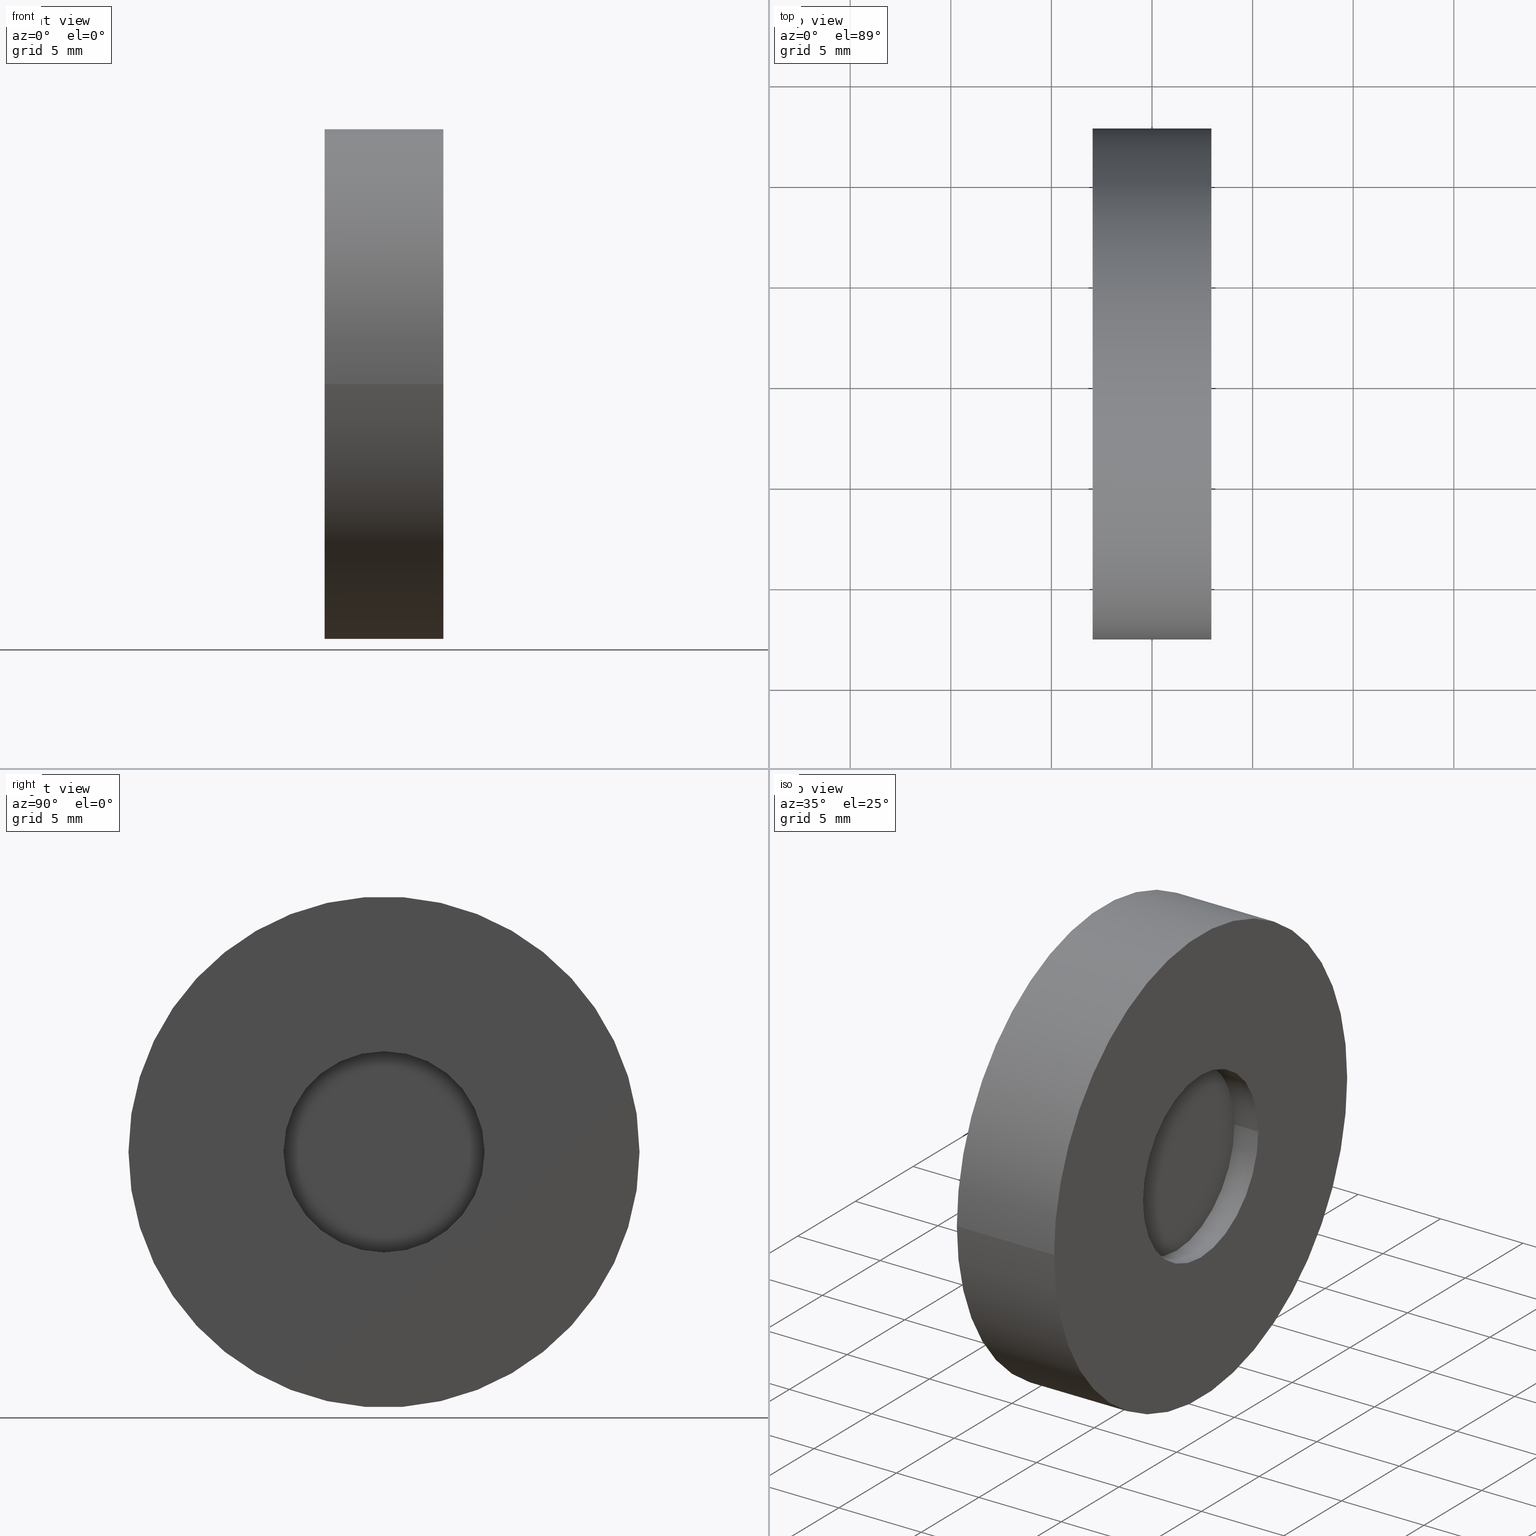
[diagram: canonical four-view strip — front | top / right | iso, engineering-drawing reading convention]
A machine part, canonical four-view strip (front | top / right | iso — engineering-drawing reading convention). The complete STEP part file that produces these views, byte-faithful:
ISO-10303-21;
HEADER;
FILE_DESCRIPTION (( 'STEP AP203' ),
    '1' );
FILE_NAME ('338000.STEP',
    '2021-07-16T05:55:18',
    ( '' ),
    ( '' ),
    'SwSTEP 2.0',
    'SolidWorks 2020',
    '' );
FILE_SCHEMA (( 'CONFIG_CONTROL_DESIGN' ));
ENDSEC;

DATA;
#1 = DIRECTION ( 'NONE',  ( 0.000000000000000000, 0.000000000000000000, 1.000000000000000000 ) ) ;
#2 = DIRECTION ( 'NONE',  ( 1.000000000000000000, 0.000000000000000000, 0.000000000000000000 ) ) ;
#3 = AXIS2_PLACEMENT_3D ( 'NONE', #430, #126, #500 ) ;
#4 = CARTESIAN_POINT ( 'NONE',  ( -0.7249999999999549027, -7.500000000000000000, 9.184850993605149917E-16 ) ) ;
#5 = LINE ( 'NONE', #113, #573 ) ;
#6 = LINE ( 'NONE', #8, #179 ) ;
#7 = CARTESIAN_POINT ( 'NONE',  ( 1.500000000000000000, -5.000000000000000000, 6.123233995736771213E-16 ) ) ;
#8 = CARTESIAN_POINT ( 'NONE',  ( 2.225000000000000089, -5.000000000000000000, 6.123233995736771213E-16 ) ) ;
#9 = EDGE_CURVE ( 'NONE', #274, #291, #112, .T. ) ;
#10 = AXIS2_PLACEMENT_3D ( 'NONE', #610, #294, #288 ) ;
#11 = DIRECTION ( 'NONE',  ( 1.000000000000000000, 0.000000000000000000, 0.000000000000000000 ) ) ;
#12 = APPROVAL_PERSON_ORGANIZATION ( #393, #602, #456 ) ;
#13 = VERTEX_POINT ( 'NONE', #329 ) ;
#14 = APPLICATION_PROTOCOL_DEFINITION ( 'international standard', 'config_control_design', 1994, #57 ) ;
#15 = PRODUCT ( '338000', '338000', '', ( #270 ) ) ;
#16 = ORIENTED_EDGE ( 'NONE', *, *, #56, .T. ) ;
#17 = COORDINATED_UNIVERSAL_TIME_OFFSET ( 8, 0, .AHEAD. ) ;
#18 = CC_DESIGN_APPROVAL ( #478, ( #592 ) ) ;
#19 = CYLINDRICAL_SURFACE ( 'NONE', #3, 12.69999999999999929 ) ;
#20 = CIRCLE ( 'NONE', #394, 7.500000000000000000 ) ;
#21 = EDGE_CURVE ( 'NONE', #326, #593, #375, .T. ) ;
#22 = VERTEX_POINT ( 'NONE', #481 ) ;
#23 = ORIENTED_EDGE ( 'NONE', *, *, #296, .T. ) ;
#24 = DIRECTION ( 'NONE',  ( -1.532339070446179666E-15, 1.000000000000000000, 0.000000000000000000 ) ) ;
#25 = AXIS2_PLACEMENT_3D ( 'NONE', #569, #43, #248 ) ;
#26 = CIRCLE ( 'NONE', #343, 5.000000000000000000 ) ;
#27 = ORIENTED_EDGE ( 'NONE', *, *, #364, .T. ) ;
#28 = VERTEX_POINT ( 'NONE', #595 ) ;
#29 = VERTEX_POINT ( 'NONE', #325 ) ;
#30 = ORIENTED_EDGE ( 'NONE', *, *, #347, .F. ) ;
#31 = DIRECTION ( 'NONE',  ( 1.000000000000000000, 0.000000000000000000, 0.000000000000000000 ) ) ;
#32 = ORIENTED_EDGE ( 'NONE', *, *, #347, .T. ) ;
#33 = DIRECTION ( 'NONE',  ( 1.000000000000000000, 0.000000000000000000, 0.000000000000000000 ) ) ;
#34 = DIRECTION ( 'NONE',  ( 0.000000000000000000, 0.000000000000000000, -1.000000000000000000 ) ) ;
#35 = DIRECTION ( 'NONE',  ( -1.480297366166879989E-15, 1.000000000000000000, 0.000000000000000000 ) ) ;
#36 = CARTESIAN_POINT ( 'NONE',  ( 1.110223024625159893E-15, -12.69999999999999929, 1.555301434917139813E-15 ) ) ;
#37 = ADVANCED_FACE ( 'NONE', ( #74 ), #19, .T. ) ;
#38 = DIRECTION ( 'NONE',  ( 1.000000000000000000, 0.000000000000000000, 0.000000000000000000 ) ) ;
#39 =( GEOMETRIC_REPRESENTATION_CONTEXT ( 3 ) GLOBAL_UNCERTAINTY_ASSIGNED_CONTEXT ( ( #429 ) ) GLOBAL_UNIT_ASSIGNED_CONTEXT ( ( #219, #272, #374 ) ) REPRESENTATION_CONTEXT ( 'NONE', 'WORKASPACE' ) );
#40 = EDGE_CURVE ( 'NONE', #479, #326, #233, .T. ) ;
#41 = CARTESIAN_POINT ( 'NONE',  ( 1.500000000000000000, -7.500000000000000000, 9.184850993605149917E-16 ) ) ;
#42 = CYLINDRICAL_SURFACE ( 'NONE', #549, 11.70000000000000107 ) ;
#43 = DIRECTION ( 'NONE',  ( 1.000000000000000000, 0.000000000000000000, 0.000000000000000000 ) ) ;
#44 = CYLINDRICAL_SURFACE ( 'NONE', #580, 7.500000000000000000 ) ;
#45 = ORIENTED_EDGE ( 'NONE', *, *, #433, .T. ) ;
#46 = CARTESIAN_POINT ( 'NONE',  ( 2.949999999999999734, -5.000000000000000000, 6.123233995736771213E-16 ) ) ;
#47 = FACE_OUTER_BOUND ( 'NONE', #648, .T. ) ;
#48 = FACE_OUTER_BOUND ( 'NONE', #284, .T. ) ;
#49 = ORIENTED_EDGE ( 'NONE', *, *, #447, .F. ) ;
#50 = CC_DESIGN_DATE_AND_TIME_ASSIGNMENT ( #635, #65, ( #592 ) ) ;
#51 = DIRECTION ( 'NONE',  ( 1.000000000000000000, 0.000000000000000000, 0.000000000000000000 ) ) ;
#52 = DIRECTION ( 'NONE',  ( 1.000000000000000000, 0.000000000000000000, 0.000000000000000000 ) ) ;
#53 = FACE_OUTER_BOUND ( 'NONE', #379, .T. ) ;
#54 = AXIS2_PLACEMENT_3D ( 'NONE', #355, #301, #577 ) ;
#55 = CLOSED_SHELL ( 'NONE', ( #616, #322, #574, #553, #276, #482, #241, #37, #231, #125 ) ) ;
#56 = EDGE_CURVE ( 'NONE', #218, #29, #540, .T. ) ;
#57 = APPLICATION_CONTEXT ( 'configuration controlled 3d designs of mechanical parts and assemblies' ) ;
#58 = CARTESIAN_POINT ( 'NONE',  ( -2.949999999999999734, 0.000000000000000000, 0.000000000000000000 ) ) ;
#59 = DIRECTION ( 'NONE',  ( 0.000000000000000000, 1.000000000000000000, 0.000000000000000000 ) ) ;
#60 = VECTOR ( 'NONE', #214, 1000.000000000000000 ) ;
#61 = CIRCLE ( 'NONE', #550, 12.69999999999999929 ) ;
#62 = DIRECTION ( 'NONE',  ( 1.000000000000000000, 0.000000000000000000, 0.000000000000000000 ) ) ;
#63 = AXIS2_PLACEMENT_3D ( 'NONE', #236, #33, #145 ) ;
#64 = EDGE_CURVE ( 'NONE', #122, #593, #535, .T. ) ;
#65 = DATE_TIME_ROLE ( 'creation_date' ) ;
#66 = ORIENTED_EDGE ( 'NONE', *, *, #498, .T. ) ;
#67 = APPROVAL_STATUS ( 'not_yet_approved' ) ;
#68 = ORIENTED_EDGE ( 'NONE', *, *, #289, .T. ) ;
#69 = DIRECTION ( 'NONE',  ( 1.000000000000000000, 0.000000000000000000, 0.000000000000000000 ) ) ;
#70 = PERSON_AND_ORGANIZATION_ROLE ( 'design_supplier' ) ;
#71 = ORIENTED_EDGE ( 'NONE', *, *, #644, .T. ) ;
#72 = ORIENTED_EDGE ( 'NONE', *, *, #594, .T. ) ;
#73 = SECURITY_CLASSIFICATION ( '', '', #335 ) ;
#74 = FACE_OUTER_BOUND ( 'NONE', #655, .T. ) ;
#75 = ADVANCED_FACE ( 'NONE', ( #320 ), #78, .T. ) ;
#76 = ORIENTED_EDGE ( 'NONE', *, *, #491, .F. ) ;
#77 = ORIENTED_EDGE ( 'NONE', *, *, #539, .F. ) ;
#78 = CYLINDRICAL_SURFACE ( 'NONE', #138, 7.500000000000000000 ) ;
#79 = AXIS2_PLACEMENT_3D ( 'NONE', #446, #563, #568 ) ;
#80 = VECTOR ( 'NONE', #244, 1000.000000000000000 ) ;
#81 = ORIENTED_EDGE ( 'NONE', *, *, #40, .T. ) ;
#82 = ORIENTED_EDGE ( 'NONE', *, *, #520, .F. ) ;
#83 = CARTESIAN_POINT ( 'NONE',  ( -2.200000000000000178, -11.70000000000000107, 1.432836755002401904E-15 ) ) ;
#84 = ORIENTED_EDGE ( 'NONE', *, *, #289, .F. ) ;
#85 = CALENDAR_DATE ( 2021, 16, 7 ) ;
#86 = CIRCLE ( 'NONE', #462, 5.000000000000000000 ) ;
#87 = CYLINDRICAL_SURFACE ( 'NONE', #150, 5.000000000000000000 ) ;
#88 = CIRCLE ( 'NONE', #260, 11.70000000000000107 ) ;
#89 = AXIS2_PLACEMENT_3D ( 'NONE', #143, #614, #102 ) ;
#90 = DIRECTION ( 'NONE',  ( 1.000000000000000000, 0.000000000000000000, 0.000000000000000000 ) ) ;
#91 = DIRECTION ( 'NONE',  ( 0.000000000000000000, 0.000000000000000000, -1.000000000000000000 ) ) ;
#92 = EDGE_CURVE ( 'NONE', #649, #435, #86, .T. ) ;
#93 = EDGE_CURVE ( 'NONE', #357, #405, #607, .T. ) ;
#94 = CARTESIAN_POINT ( 'NONE',  ( -2.949999999999999734, 11.70000000000000107, 0.000000000000000000 ) ) ;
#95 = CARTESIAN_POINT ( 'NONE',  ( 1.500000000000000000, 5.000000000000000000, 0.000000000000000000 ) ) ;
#96 = FACE_OUTER_BOUND ( 'NONE', #220, .T. ) ;
#97 = APPROVAL_DATE_TIME ( #444, #602 ) ;
#98 = VECTOR ( 'NONE', #242, 1000.000000000000000 ) ;
#99 = DIRECTION ( 'NONE',  ( -1.000000000000000000, 0.000000000000000000, 0.000000000000000000 ) ) ;
#100 = DIRECTION ( 'NONE',  ( 1.000000000000000000, 0.000000000000000000, 0.000000000000000000 ) ) ;
#101 = ORIENTED_EDGE ( 'NONE', *, *, #417, .T. ) ;
#102 = DIRECTION ( 'NONE',  ( 0.000000000000000000, 0.000000000000000000, -1.000000000000000000 ) ) ;
#103 = CARTESIAN_POINT ( 'NONE',  ( 2.949999999999999734, 5.000000000000000000, 0.000000000000000000 ) ) ;
#104 = CARTESIAN_POINT ( 'NONE',  ( -2.200000000000000178, -11.70000000000000107, 1.432836755002401904E-15 ) ) ;
#105 = EDGE_LOOP ( 'NONE', ( #328, #130 ) ) ;
#106 = CARTESIAN_POINT ( 'NONE',  ( -1.449999999999999956, -11.70000000000000107, 1.432836755002401904E-15 ) ) ;
#107 = DIRECTION ( 'NONE',  ( 1.000000000000000000, 0.000000000000000000, 0.000000000000000000 ) ) ;
#108 = CARTESIAN_POINT ( 'NONE',  ( 2.225000000000000089, 0.000000000000000000, 0.000000000000000000 ) ) ;
#109 = DIRECTION ( 'NONE',  ( 0.000000000000000000, 0.000000000000000000, -1.000000000000000000 ) ) ;
#110 = DIRECTION ( 'NONE',  ( 0.000000000000000000, 1.000000000000000000, 0.000000000000000000 ) ) ;
#111 = APPROVAL_PERSON_ORGANIZATION ( #221, #478, #121 ) ;
#112 = CIRCLE ( 'NONE', #193, 11.70000000000000107 ) ;
#113 = CARTESIAN_POINT ( 'NONE',  ( 2.225000000000000089, 5.000000000000000000, 0.000000000000000000 ) ) ;
#114 = DIRECTION ( 'NONE',  ( 1.000000000000000000, 3.064678140892360120E-15, 0.000000000000000000 ) ) ;
#115 = AXIS2_PLACEMENT_3D ( 'NONE', #160, #559, #464 ) ;
#116 = EDGE_CURVE ( 'NONE', #422, #617, #140, .T. ) ;
#117 = EDGE_CURVE ( 'NONE', #589, #225, #309, .T. ) ;
#118 = DATE_AND_TIME ( #477, #327 ) ;
#119 = EDGE_CURVE ( 'NONE', #227, #546, #20, .T. ) ;
#120 = ORIENTED_EDGE ( 'NONE', *, *, #259, .F. ) ;
#121 = APPROVAL_ROLE ( '' ) ;
#122 = VERTEX_POINT ( 'NONE', #346 ) ;
#123 = PERSON_AND_ORGANIZATION ( #541, #365 ) ;
#124 = ORIENTED_EDGE ( 'NONE', *, *, #531, .F. ) ;
#125 = ADVANCED_FACE ( 'NONE', ( #96 ), #295, .F. ) ;
#126 = DIRECTION ( 'NONE',  ( 1.000000000000000000, 0.000000000000000000, 0.000000000000000000 ) ) ;
#127 = ORIENTED_EDGE ( 'NONE', *, *, #423, .F. ) ;
#128 = ORIENTED_EDGE ( 'NONE', *, *, #447, .T. ) ;
#129 = DIRECTION ( 'NONE',  ( 1.000000000000000000, 0.000000000000000000, 0.000000000000000000 ) ) ;
#130 = ORIENTED_EDGE ( 'NONE', *, *, #93, .T. ) ;
#131 = EDGE_LOOP ( 'NONE', ( #32, #317 ) ) ;
#132 = CYLINDRICAL_SURFACE ( 'NONE', #493, 7.500000000000000000 ) ;
#133 = ORIENTED_EDGE ( 'NONE', *, *, #656, .F. ) ;
#134 = CARTESIAN_POINT ( 'NONE',  ( -1.449999999999999956, 0.000000000000000000, 0.000000000000000000 ) ) ;
#135 = ORIENTED_EDGE ( 'NONE', *, *, #21, .F. ) ;
#136 = AXIS2_PLACEMENT_3D ( 'NONE', #315, #167, #480 ) ;
#137 = CLOSED_SHELL ( 'NONE', ( #470, #166, #265, #400, #182, #348 ) ) ;
#138 = AXIS2_PLACEMENT_3D ( 'NONE', #224, #184, #24 ) ;
#139 = DIRECTION ( 'NONE',  ( -1.000000000000000000, -3.062684205862500216E-15, 0.000000000000000000 ) ) ;
#140 = LINE ( 'NONE', #36, #210 ) ;
#141 = ADVANCED_FACE ( 'NONE', ( #200 ), #239, .T. ) ;
#142 = CIRCLE ( 'NONE', #79, 11.70000000000000107 ) ;
#143 = CARTESIAN_POINT ( 'NONE',  ( 1.500000000000000000, 0.000000000000000000, 0.000000000000000000 ) ) ;
#144 = AXIS2_PLACEMENT_3D ( 'NONE', #515, #308, #621 ) ;
#145 = DIRECTION ( 'NONE',  ( 0.000000000000000000, 1.000000000000000000, 0.000000000000000000 ) ) ;
#146 = DIRECTION ( 'NONE',  ( 1.000000000000000000, 1.480297366166879989E-15, 0.000000000000000000 ) ) ;
#147 = COORDINATED_UNIVERSAL_TIME_OFFSET ( 8, 0, .AHEAD. ) ;
#148 = EDGE_CURVE ( 'NONE', #29, #492, #637, .T. ) ;
#149 = DIRECTION ( 'NONE',  ( 0.000000000000000000, 0.000000000000000000, -1.000000000000000000 ) ) ;
#150 = AXIS2_PLACEMENT_3D ( 'NONE', #598, #31, #332 ) ;
#151 = ORIENTED_EDGE ( 'NONE', *, *, #9, .T. ) ;
#152 = CARTESIAN_POINT ( 'NONE',  ( -2.949999999999999734, -11.70000000000000107, 1.432836755002401904E-15 ) ) ;
#153 = CARTESIAN_POINT ( 'NONE',  ( 1.500000000000000000, 7.500000000000000000, 0.000000000000000000 ) ) ;
#154 = CYLINDRICAL_SURFACE ( 'NONE', #174, 11.70000000000000107 ) ;
#155 = CC_DESIGN_DATE_AND_TIME_ASSIGNMENT ( #399, #189, ( #73 ) ) ;
#156 = ORIENTED_EDGE ( 'NONE', *, *, #667, .T. ) ;
#157 = DIRECTION ( 'NONE',  ( -1.000000000000000000, 0.000000000000000000, 0.000000000000000000 ) ) ;
#158 = CARTESIAN_POINT ( 'NONE',  ( 0.7500000000000229816, -7.500000000000000000, 9.184850993605149917E-16 ) ) ;
#159 = LINE ( 'NONE', #104, #266 ) ;
#160 = CARTESIAN_POINT ( 'NONE',  ( 2.949999999999999734, 5.000000000000000000, 0.000000000000000000 ) ) ;
#161 = CYLINDRICAL_SURFACE ( 'NONE', #666, 7.500000000000000000 ) ;
#162 = FACE_OUTER_BOUND ( 'NONE', #373, .T. ) ;
#163 = CARTESIAN_POINT ( 'NONE',  ( 4.547948229646449659E-14, -7.500000000000000000, 9.184850993605149917E-16 ) ) ;
#164 = CIRCLE ( 'NONE', #54, 12.69999999999999929 ) ;
#165 = CC_DESIGN_PERSON_AND_ORGANIZATION_ASSIGNMENT ( #425, #321, ( #15 ) ) ;
#166 = ADVANCED_FACE ( 'NONE', ( #190, #660 ), #615, .T. ) ;
#167 = DIRECTION ( 'NONE',  ( 0.000000000000000000, 0.000000000000000000, 1.000000000000000000 ) ) ;
#168 = ORIENTED_EDGE ( 'NONE', *, *, #421, .F. ) ;
#169 = ORIENTED_EDGE ( 'NONE', *, *, #64, .F. ) ;
#170 = AXIS2_PLACEMENT_3D ( 'NONE', #657, #404, #290 ) ;
#171 = PERSON_AND_ORGANIZATION ( #541, #365 ) ;
#172 = ADVANCED_FACE ( 'NONE', ( #185 ), #132, .T. ) ;
#173 = VECTOR ( 'NONE', #571, 1000.000000000000000 ) ;
#174 = AXIS2_PLACEMENT_3D ( 'NONE', #356, #209, #59 ) ;
#175 = CARTESIAN_POINT ( 'NONE',  ( -2.200000000000000178, -5.000000000000000000, 6.123233995736771213E-16 ) ) ;
#176 = EDGE_LOOP ( 'NONE', ( #49, #246, #484, #424 ) ) ;
#177 = ORIENTED_EDGE ( 'NONE', *, *, #40, .F. ) ;
#178 = DIRECTION ( 'NONE',  ( 1.000000000000000000, 0.000000000000000000, 0.000000000000000000 ) ) ;
#179 = VECTOR ( 'NONE', #630, 1000.000000000000000 ) ;
#180 = APPLICATION_CONTEXT ( 'configuration controlled 3d designs of mechanical parts and assemblies' ) ;
#181 = EDGE_LOOP ( 'NONE', ( #508, #299, #634, #331 ) ) ;
#182 = ADVANCED_FACE ( 'NONE', ( #187 ), #87, .F. ) ;
#183 = ORIENTED_EDGE ( 'NONE', *, *, #641, .F. ) ;
#184 = DIRECTION ( 'NONE',  ( 1.000000000000000000, 1.532339070446179863E-15, 0.000000000000000000 ) ) ;
#185 = FACE_OUTER_BOUND ( 'NONE', #476, .T. ) ;
#186 = ORIENTED_EDGE ( 'NONE', *, *, #213, .F. ) ;
#187 = FACE_OUTER_BOUND ( 'NONE', #601, .T. ) ;
#188 = ORIENTED_EDGE ( 'NONE', *, *, #605, .F. ) ;
#189 = DATE_TIME_ROLE ( 'classification_date' ) ;
#190 = FACE_BOUND ( 'NONE', #585, .T. ) ;
#191 = PRODUCT_DEFINITION_FORMATION_WITH_SPECIFIED_SOURCE ( '�κ�', '', #15, .NOT_KNOWN. ) ;
#192 = CARTESIAN_POINT ( 'NONE',  ( -1.449999999999979972, -4.440892098500559897E-15, 0.000000000000000000 ) ) ;
#193 = AXIS2_PLACEMENT_3D ( 'NONE', #449, #129, #440 ) ;
#194 = FACE_OUTER_BOUND ( 'NONE', #105, .T. ) ;
#195 = ADVANCED_FACE ( 'NONE', ( #600 ), #451, .F. ) ;
#196 = DIRECTION ( 'NONE',  ( 1.000000000000000000, 0.000000000000000000, 0.000000000000000000 ) ) ;
#197 = AXIS2_PLACEMENT_3D ( 'NONE', #58, #420, #629 ) ;
#198 = LINE ( 'NONE', #403, #80 ) ;
#199 = AXIS2_PLACEMENT_3D ( 'NONE', #292, #502, #34 ) ;
#200 = FACE_OUTER_BOUND ( 'NONE', #131, .T. ) ;
#201 = ORIENTED_EDGE ( 'NONE', *, *, #503, .T. ) ;
#202 = MANIFOLD_SOLID_BREP ( 'NONE', #137 ) ;
#203 = DIRECTION ( 'NONE',  ( 1.000000000000000000, 0.000000000000000000, 0.000000000000000000 ) ) ;
#204 = CARTESIAN_POINT ( 'NONE',  ( 0.000000000000000000, -2.294460917558659743E-15, 0.000000000000000000 ) ) ;
#205 = CARTESIAN_POINT ( 'NONE',  ( -1.449999999999999956, 0.000000000000000000, 0.000000000000000000 ) ) ;
#206 = ORIENTED_EDGE ( 'NONE', *, *, #117, .F. ) ;
#207 = CARTESIAN_POINT ( 'NONE',  ( -2.949999999999999734, -5.000000000000000000, 6.123233995736771213E-16 ) ) ;
#208 = CARTESIAN_POINT ( 'NONE',  ( 1.500000000000000000, 0.000000000000000000, 0.000000000000000000 ) ) ;
#209 = DIRECTION ( 'NONE',  ( 1.000000000000000000, 0.000000000000000000, 0.000000000000000000 ) ) ;
#210 = VECTOR ( 'NONE', #243, 1000.000000000000000 ) ;
#211 = CARTESIAN_POINT ( 'NONE',  ( 1.110223024625159893E-15, 12.69999999999999929, 0.000000000000000000 ) ) ;
#212 = CARTESIAN_POINT ( 'NONE',  ( 1.110223024625159893E-15, 0.000000000000000000, 0.000000000000000000 ) ) ;
#213 = EDGE_CURVE ( 'NONE', #495, #291, #543, .T. ) ;
#214 = DIRECTION ( 'NONE',  ( 1.000000000000000000, 3.062684205862500216E-15, 0.000000000000000000 ) ) ;
#215 = CARTESIAN_POINT ( 'NONE',  ( -2.949999999999999734, 0.000000000000000000, 0.000000000000000000 ) ) ;
#216 = ADVANCED_FACE ( 'NONE', ( #345 ), #604, .T. ) ;
#217 = DIRECTION ( 'NONE',  ( 0.000000000000000000, 0.000000000000000000, -1.000000000000000000 ) ) ;
#218 = VERTEX_POINT ( 'NONE', #545 ) ;
#219 =( LENGTH_UNIT ( ) NAMED_UNIT ( * ) SI_UNIT ( .MILLI., .METRE. ) );
#220 = EDGE_LOOP ( 'NONE', ( #206, #68, #489, #133 ) ) ;
#221 = PERSON_AND_ORGANIZATION ( #541, #365 ) ;
#222 = COORDINATED_UNIVERSAL_TIME_OFFSET ( 8, 0, .AHEAD. ) ;
#223 = VECTOR ( 'NONE', #620, 1000.000000000000000 ) ;
#224 = CARTESIAN_POINT ( 'NONE',  ( 0.7500000000000109912, -1.184237892933479931E-15, 0.000000000000000000 ) ) ;
#225 = VERTEX_POINT ( 'NONE', #95 ) ;
#226 = CIRCLE ( 'NONE', #431, 5.000000000000000000 ) ;
#227 = VERTEX_POINT ( 'NONE', #41 ) ;
#228 = CIRCLE ( 'NONE', #199, 7.500000000000000000 ) ;
#229 = DIRECTION ( 'NONE',  ( 1.000000000000000000, 0.000000000000000000, 0.000000000000000000 ) ) ;
#230 = ADVANCED_FACE ( 'NONE', ( #194 ), #494, .T. ) ;
#231 = ADVANCED_FACE ( 'NONE', ( #396 ), #339, .F. ) ;
#232 = EDGE_LOOP ( 'NONE', ( #269, #303 ) ) ;
#233 = LINE ( 'NONE', #175, #587 ) ;
#234 = AXIS2_PLACEMENT_3D ( 'NONE', #253, #298, #578 ) ;
#235 = ORIENTED_EDGE ( 'NONE', *, *, #56, .F. ) ;
#236 = CARTESIAN_POINT ( 'NONE',  ( -1.449999999999999956, 5.000000000000000000, 0.000000000000000000 ) ) ;
#237 = VERTEX_POINT ( 'NONE', #504 ) ;
#238 = CC_DESIGN_PERSON_AND_ORGANIZATION_ASSIGNMENT ( #561, #557, ( #73 ) ) ;
#239 = PLANE ( 'NONE',  #170 ) ;
#240 = FACE_OUTER_BOUND ( 'NONE', #267, .T. ) ;
#241 = ADVANCED_FACE ( 'NONE', ( #245 ), #663, .T. ) ;
#242 = DIRECTION ( 'NONE',  ( 1.000000000000000000, 0.000000000000000000, 0.000000000000000000 ) ) ;
#243 = DIRECTION ( 'NONE',  ( 1.000000000000000000, 0.000000000000000000, 0.000000000000000000 ) ) ;
#244 = DIRECTION ( 'NONE',  ( 1.000000000000000000, 1.533658456047630000E-15, 0.000000000000000000 ) ) ;
#245 = FACE_OUTER_BOUND ( 'NONE', #286, .T. ) ;
#246 = ORIENTED_EDGE ( 'NONE', *, *, #423, .T. ) ;
#247 = CARTESIAN_POINT ( 'NONE',  ( -2.200000000000000178, 0.000000000000000000, 0.000000000000000000 ) ) ;
#248 = DIRECTION ( 'NONE',  ( 0.000000000000000000, 0.000000000000000000, -1.000000000000000000 ) ) ;
#249 = DIRECTION ( 'NONE',  ( 0.000000000000000000, 0.000000000000000000, -1.000000000000000000 ) ) ;
#250 = ORIENTED_EDGE ( 'NONE', *, *, #9, .F. ) ;
#251 = CARTESIAN_POINT ( 'NONE',  ( -2.949999999999999734, -12.69999999999999929, 1.555301434917139813E-15 ) ) ;
#252 = CARTESIAN_POINT ( 'NONE',  ( 2.949999999999999734, 0.000000000000000000, 0.000000000000000000 ) ) ;
#253 = CARTESIAN_POINT ( 'NONE',  ( 0.000000000000000000, -2.294460917558659743E-15, 0.000000000000000000 ) ) ;
#254 = ORIENTED_EDGE ( 'NONE', *, *, #433, .F. ) ;
#255 = PLANE ( 'NONE',  #402 ) ;
#256 = CARTESIAN_POINT ( 'NONE',  ( -2.949999999999999734, 11.70000000000000107, 0.000000000000000000 ) ) ;
#257 = DIRECTION ( 'NONE',  ( 1.000000000000000000, 0.000000000000000000, 0.000000000000000000 ) ) ;
#258 = AXIS2_PLACEMENT_3D ( 'NONE', #652, #90, #548 ) ;
#259 = EDGE_CURVE ( 'NONE', #479, #122, #351, .T. ) ;
#260 = AXIS2_PLACEMENT_3D ( 'NONE', #513, #51, #109 ) ;
#261 = DIRECTION ( 'NONE',  ( 0.000000000000000000, 0.000000000000000000, -1.000000000000000000 ) ) ;
#262 = DIRECTION ( 'NONE',  ( 1.000000000000000000, 0.000000000000000000, 0.000000000000000000 ) ) ;
#263 = CIRCLE ( 'NONE', #370, 7.500000000000000000 ) ;
#264 = DIRECTION ( 'NONE',  ( 1.000000000000000000, 0.000000000000000000, 0.000000000000000000 ) ) ;
#265 = ADVANCED_FACE ( 'NONE', ( #511 ), #367, .F. ) ;
#266 = VECTOR ( 'NONE', #257, 1000.000000000000000 ) ;
#267 = EDGE_LOOP ( 'NONE', ( #254, #544 ) ) ;
#268 = COORDINATED_UNIVERSAL_TIME_OFFSET ( 8, 0, .AHEAD. ) ;
#269 = ORIENTED_EDGE ( 'NONE', *, *, #523, .F. ) ;
#270 = MECHANICAL_CONTEXT ( 'NONE', #57, 'mechanical' ) ;
#271 = DIRECTION ( 'NONE',  ( 0.000000000000000000, 0.000000000000000000, -1.000000000000000000 ) ) ;
#272 =( NAMED_UNIT ( * ) PLANE_ANGLE_UNIT ( ) SI_UNIT ( $, .RADIAN. ) );
#273 = LOCAL_TIME ( 13, 55, 18.00000000000000000, #222 ) ;
#274 = VERTEX_POINT ( 'NONE', #306 ) ;
#275 = CLOSED_SHELL ( 'NONE', ( #195, #75, #141, #172 ) ) ;
#276 = ADVANCED_FACE ( 'NONE', ( #48 ), #409, .F. ) ;
#277 = CARTESIAN_POINT ( 'NONE',  ( -0.7249999999999779954, -2.220446049250240111E-15, 0.000000000000000000 ) ) ;
#278 = EDGE_CURVE ( 'NONE', #443, #22, #439, .T. ) ;
#279 = VERTEX_POINT ( 'NONE', #469 ) ;
#280 = CIRCLE ( 'NONE', #25, 11.70000000000000107 ) ;
#281 = ORIENTED_EDGE ( 'NONE', *, *, #523, .T. ) ;
#282 = CIRCLE ( 'NONE', #612, 12.69999999999999929 ) ;
#283 = CARTESIAN_POINT ( 'NONE',  ( 2.250935075249569901E-14, 6.893903303388760389E-29, 0.000000000000000000 ) ) ;
#284 = EDGE_LOOP ( 'NONE', ( #330, #668, #16, #438 ) ) ;
#285 = CARTESIAN_POINT ( 'NONE',  ( -1.449999999999999956, 7.500000000000000000, 0.000000000000000000 ) ) ;
#286 = EDGE_LOOP ( 'NONE', ( #653, #71, #530, #77 ) ) ;
#287 = VECTOR ( 'NONE', #646, 1000.000000000000000 ) ;
#288 = DIRECTION ( 'NONE',  ( 0.000000000000000000, 1.000000000000000000, 0.000000000000000000 ) ) ;
#289 = EDGE_CURVE ( 'NONE', #589, #435, #6, .T. ) ;
#290 = DIRECTION ( 'NONE',  ( -1.480297366166879989E-15, 1.000000000000000000, 0.000000000000000000 ) ) ;
#291 = VERTEX_POINT ( 'NONE', #507 ) ;
#292 = CARTESIAN_POINT ( 'NONE',  ( -1.449999999999979972, -4.440892098500559897E-15, 0.000000000000000000 ) ) ;
#293 = AXIS2_PLACEMENT_3D ( 'NONE', #442, #388, #448 ) ;
#294 = DIRECTION ( 'NONE',  ( 1.000000000000000000, 0.000000000000000000, 0.000000000000000000 ) ) ;
#295 = CYLINDRICAL_SURFACE ( 'NONE', #258, 5.000000000000000000 ) ;
#296 = EDGE_CURVE ( 'NONE', #490, #492, #159, .T. ) ;
#297 = FACE_OUTER_BOUND ( 'NONE', #562, .T. ) ;
#298 = DIRECTION ( 'NONE',  ( 1.000000000000000000, 1.533658456047630000E-15, 0.000000000000000000 ) ) ;
#299 = ORIENTED_EDGE ( 'NONE', *, *, #278, .T. ) ;
#300 = CARTESIAN_POINT ( 'NONE',  ( -2.949999999999999734, 0.000000000000000000, 0.000000000000000000 ) ) ;
#301 = DIRECTION ( 'NONE',  ( 1.000000000000000000, 0.000000000000000000, 0.000000000000000000 ) ) ;
#302 = DIRECTION ( 'NONE',  ( 0.000000000000000000, 1.000000000000000000, 0.000000000000000000 ) ) ;
#303 = ORIENTED_EDGE ( 'NONE', *, *, #278, .F. ) ;
#304 = CARTESIAN_POINT ( 'NONE',  ( -2.949999999999999734, -11.70000000000000107, 1.432836755002401904E-15 ) ) ;
#305 = PLANE ( 'NONE',  #115 ) ;
#306 = CARTESIAN_POINT ( 'NONE',  ( -1.449999999999999956, 11.70000000000000107, 0.000000000000000000 ) ) ;
#307 = CARTESIAN_POINT ( 'NONE',  ( -0.7249999999999999778, 7.500000000000000000, 0.000000000000000000 ) ) ;
#308 = DIRECTION ( 'NONE',  ( 1.000000000000000000, 1.480297366166879989E-15, 0.000000000000000000 ) ) ;
#309 = CIRCLE ( 'NONE', #547, 5.000000000000000000 ) ;
#310 = ADVANCED_FACE ( 'NONE', ( #461 ), #44, .T. ) ;
#311 = AXIS2_PLACEMENT_3D ( 'NONE', #208, #62, #413 ) ;
#312 = DIRECTION ( 'NONE',  ( 1.000000000000000000, 0.000000000000000000, 0.000000000000000000 ) ) ;
#313 = DIRECTION ( 'NONE',  ( -3.064678140892359332E-15, 1.000000000000000000, 0.000000000000000000 ) ) ;
#314 = CIRCLE ( 'NONE', #144, 7.500000000000000000 ) ;
#315 = CARTESIAN_POINT ( 'NONE',  ( 0.000000000000000000, 0.000000000000000000, 0.000000000000000000 ) ) ;
#316 = AXIS2_PLACEMENT_3D ( 'NONE', #215, #2, #519 ) ;
#317 = ORIENTED_EDGE ( 'NONE', *, *, #119, .T. ) ;
#318 = CALENDAR_DATE ( 2021, 16, 7 ) ;
#319 = ORIENTED_EDGE ( 'NONE', *, *, #64, .T. ) ;
#320 = FACE_OUTER_BOUND ( 'NONE', #181, .T. ) ;
#321 = PERSON_AND_ORGANIZATION_ROLE ( 'design_owner' ) ;
#322 = ADVANCED_FACE ( 'NONE', ( #626 ), #572, .F. ) ;
#323 = EDGE_LOOP ( 'NONE', ( #410, #128, #168, #124 ) ) ;
#324 = EDGE_CURVE ( 'NONE', #593, #326, #26, .T. ) ;
#325 = CARTESIAN_POINT ( 'NONE',  ( -1.449999999999999956, 11.70000000000000107, 0.000000000000000000 ) ) ;
#326 = VERTEX_POINT ( 'NONE', #671 ) ;
#327 = LOCAL_TIME ( 13, 55, 18.00000000000000000, #268 ) ;
#328 = ORIENTED_EDGE ( 'NONE', *, *, #421, .T. ) ;
#329 = CARTESIAN_POINT ( 'NONE',  ( -2.949999999999999734, 12.69999999999999929, 0.000000000000000000 ) ) ;
#330 = ORIENTED_EDGE ( 'NONE', *, *, #296, .F. ) ;
#331 = ORIENTED_EDGE ( 'NONE', *, *, #119, .F. ) ;
#332 = DIRECTION ( 'NONE',  ( 0.000000000000000000, 1.000000000000000000, 0.000000000000000000 ) ) ;
#333 = ORIENTED_EDGE ( 'NONE', *, *, #117, .T. ) ;
#334 = ADVANCED_BREP_SHAPE_REPRESENTATION ( '338000', ( #202, #651, #643, #647, #136 ), #39 ) ;
#335 = SECURITY_CLASSIFICATION_LEVEL ( 'unclassified' ) ;
#336 = DIRECTION ( 'NONE',  ( 1.000000000000000000, 1.480297366166879989E-15, 0.000000000000000000 ) ) ;
#337 = ORIENTED_EDGE ( 'NONE', *, *, #324, .F. ) ;
#338 = VECTOR ( 'NONE', #264, 1000.000000000000000 ) ;
#339 = CYLINDRICAL_SURFACE ( 'NONE', #10, 11.70000000000000107 ) ;
#340 = ORIENTED_EDGE ( 'NONE', *, *, #667, .F. ) ;
#341 = CALENDAR_DATE ( 2021, 16, 7 ) ;
#342 = CIRCLE ( 'NONE', #466, 12.69999999999999929 ) ;
#343 = AXIS2_PLACEMENT_3D ( 'NONE', #205, #360, #249 ) ;
#344 = DIRECTION ( 'NONE',  ( 0.000000000000000000, 0.000000000000000000, -1.000000000000000000 ) ) ;
#345 = FACE_OUTER_BOUND ( 'NONE', #384, .T. ) ;
#346 = CARTESIAN_POINT ( 'NONE',  ( -2.949999999999999734, 5.000000000000000000, 0.000000000000000000 ) ) ;
#347 = EDGE_CURVE ( 'NONE', #546, #227, #314, .T. ) ;
#348 = ADVANCED_FACE ( 'NONE', ( #53 ), #154, .T. ) ;
#349 = DIRECTION ( 'NONE',  ( 1.000000000000000000, 3.062684205862500216E-15, 0.000000000000000000 ) ) ;
#350 = DIRECTION ( 'NONE',  ( -1.533658456047629803E-15, 1.000000000000000000, 0.000000000000000000 ) ) ;
#351 = CIRCLE ( 'NONE', #316, 5.000000000000000000 ) ;
#352 = DIRECTION ( 'NONE',  ( 1.000000000000000000, 0.000000000000000000, 0.000000000000000000 ) ) ;
#353 = ORIENTED_EDGE ( 'NONE', *, *, #664, .F. ) ;
#354 = DIRECTION ( 'NONE',  ( 0.000000000000000000, 0.000000000000000000, -1.000000000000000000 ) ) ;
#355 = CARTESIAN_POINT ( 'NONE',  ( -2.949999999999999734, 0.000000000000000000, 0.000000000000000000 ) ) ;
#356 = CARTESIAN_POINT ( 'NONE',  ( -2.200000000000000178, 0.000000000000000000, 0.000000000000000000 ) ) ;
#357 = VERTEX_POINT ( 'NONE', #163 ) ;
#358 = DIRECTION ( 'NONE',  ( 0.000000000000000000, 0.000000000000000000, 1.000000000000000000 ) ) ;
#359 = FACE_BOUND ( 'NONE', #441, .T. ) ;
#360 = DIRECTION ( 'NONE',  ( 1.000000000000000000, 0.000000000000000000, 0.000000000000000000 ) ) ;
#361 = CC_DESIGN_PERSON_AND_ORGANIZATION_ASSIGNMENT ( #533, #369, ( #592 ) ) ;
#362 = DIRECTION ( 'NONE',  ( 0.000000000000000000, 0.000000000000000000, -1.000000000000000000 ) ) ;
#363 = CARTESIAN_POINT ( 'NONE',  ( -0.7249999999999779954, -2.220446049250240111E-15, 0.000000000000000000 ) ) ;
#364 = EDGE_CURVE ( 'NONE', #237, #617, #61, .T. ) ;
#365 = ORGANIZATION ( 'δָ��', 'δָ��', '' ) ;
#366 = CARTESIAN_POINT ( 'NONE',  ( -2.949999999999999734, 0.000000000000000000, 0.000000000000000000 ) ) ;
#367 = CYLINDRICAL_SURFACE ( 'NONE', #381, 5.000000000000000000 ) ;
#368 = AXIS2_PLACEMENT_3D ( 'NONE', #406, #203, #354 ) ;
#369 = PERSON_AND_ORGANIZATION_ROLE ( 'creator' ) ;
#370 = AXIS2_PLACEMENT_3D ( 'NONE', #192, #658, #344 ) ;
#371 = EDGE_LOOP ( 'NONE', ( #156, #645 ) ) ;
#372 = APPLICATION_PROTOCOL_DEFINITION ( 'international standard', 'config_control_design', 1994, #180 ) ;
#373 = EDGE_LOOP ( 'NONE', ( #642, #389 ) ) ;
#374 =( NAMED_UNIT ( * ) SI_UNIT ( $, .STERADIAN. ) SOLID_ANGLE_UNIT ( ) );
#375 = CIRCLE ( 'NONE', #576, 5.000000000000000000 ) ;
#376 = DATE_AND_TIME ( #318, #273 ) ;
#377 = ADVANCED_FACE ( 'NONE', ( #628 ), #161, .T. ) ;
#378 = CARTESIAN_POINT ( 'NONE',  ( 1.500000000000000000, -7.401486830832590495E-17, 0.000000000000000000 ) ) ;
#379 = EDGE_LOOP ( 'NONE', ( #201, #606, #250, #183 ) ) ;
#380 = EDGE_CURVE ( 'NONE', #22, #546, #198, .T. ) ;
#381 = AXIS2_PLACEMENT_3D ( 'NONE', #419, #262, #565 ) ;
#382 = CARTESIAN_POINT ( 'NONE',  ( -1.449999999999999956, 0.000000000000000000, 0.000000000000000000 ) ) ;
#383 = ORIENTED_EDGE ( 'NONE', *, *, #503, .F. ) ;
#384 = EDGE_LOOP ( 'NONE', ( #488, #127 ) ) ;
#385 = APPROVAL ( #67, 'δָ��' ) ;
#386 = DIRECTION ( 'NONE',  ( 1.000000000000000000, 1.532339070446179863E-15, 0.000000000000000000 ) ) ;
#387 = ORIENTED_EDGE ( 'NONE', *, *, #656, .T. ) ;
#388 = DIRECTION ( 'NONE',  ( 1.000000000000000000, 3.062684205862500216E-15, 0.000000000000000000 ) ) ;
#389 = ORIENTED_EDGE ( 'NONE', *, *, #473, .F. ) ;
#390 = CARTESIAN_POINT ( 'NONE',  ( 0.000000000000000000, 0.000000000000000000, 0.000000000000000000 ) ) ;
#391 = CARTESIAN_POINT ( 'NONE',  ( 2.949999999999999734, 0.000000000000000000, 0.000000000000000000 ) ) ;
#392 = APPROVAL_PERSON_ORGANIZATION ( #426, #385, #636 ) ;
#393 = PERSON_AND_ORGANIZATION ( #541, #365 ) ;
#394 = AXIS2_PLACEMENT_3D ( 'NONE', #378, #146, #556 ) ;
#395 = FACE_OUTER_BOUND ( 'NONE', #599, .T. ) ;
#396 = FACE_OUTER_BOUND ( 'NONE', #672, .T. ) ;
#397 = EDGE_CURVE ( 'NONE', #28, #279, #263, .T. ) ;
#398 = DIRECTION ( 'NONE',  ( 1.000000000000000000, 0.000000000000000000, 0.000000000000000000 ) ) ;
#399 = DATE_AND_TIME ( #85, #474 ) ;
#400 = ADVANCED_FACE ( 'NONE', ( #505, #395 ), #255, .T. ) ;
#401 = VECTOR ( 'NONE', #349, 1000.000000000000000 ) ;
#402 = AXIS2_PLACEMENT_3D ( 'NONE', #94, #99, #609 ) ;
#403 = CARTESIAN_POINT ( 'NONE',  ( 0.7500000000000000000, 7.500000000000000000, 0.000000000000000000 ) ) ;
#404 = DIRECTION ( 'NONE',  ( 1.000000000000000000, 1.480297366166879989E-15, 0.000000000000000000 ) ) ;
#405 = VERTEX_POINT ( 'NONE', #558 ) ;
#406 = CARTESIAN_POINT ( 'NONE',  ( -1.449999999999999956, 0.000000000000000000, 0.000000000000000000 ) ) ;
#407 = LINE ( 'NONE', #670, #223 ) ;
#408 = AXIS2_PLACEMENT_3D ( 'NONE', #134, #445, #499 ) ;
#409 = CYLINDRICAL_SURFACE ( 'NONE', #472, 11.70000000000000107 ) ;
#410 = ORIENTED_EDGE ( 'NONE', *, *, #397, .T. ) ;
#411 = LOCAL_TIME ( 13, 55, 18.00000000000000000, #608 ) ;
#412 = FACE_BOUND ( 'NONE', #633, .T. ) ;
#413 = DIRECTION ( 'NONE',  ( 0.000000000000000000, 1.000000000000000000, 0.000000000000000000 ) ) ;
#414 = CARTESIAN_POINT ( 'NONE',  ( -2.200000000000000178, 0.000000000000000000, 0.000000000000000000 ) ) ;
#415 = DIRECTION ( 'NONE',  ( 0.000000000000000000, 0.000000000000000000, -1.000000000000000000 ) ) ;
#416 = DIRECTION ( 'NONE',  ( 1.000000000000000000, 0.000000000000000000, 0.000000000000000000 ) ) ;
#417 = EDGE_CURVE ( 'NONE', #225, #589, #434, .T. ) ;
#418 = CARTESIAN_POINT ( 'NONE',  ( 2.949999999999999734, -12.69999999999999929, 1.555301434917139813E-15 ) ) ;
#419 = CARTESIAN_POINT ( 'NONE',  ( -2.200000000000000178, 0.000000000000000000, 0.000000000000000000 ) ) ;
#420 = DIRECTION ( 'NONE',  ( 1.000000000000000000, 0.000000000000000000, 0.000000000000000000 ) ) ;
#421 = EDGE_CURVE ( 'NONE', #405, #357, #640, .T. ) ;
#422 = VERTEX_POINT ( 'NONE', #251 ) ;
#423 = EDGE_CURVE ( 'NONE', #279, #28, #228, .T. ) ;
#424 = ORIENTED_EDGE ( 'NONE', *, *, #93, .F. ) ;
#425 = PERSON_AND_ORGANIZATION ( #541, #365 ) ;
#426 = PERSON_AND_ORGANIZATION ( #541, #365 ) ;
#427 = AXIS2_PLACEMENT_3D ( 'NONE', #510, #471, #362 ) ;
#428 = VECTOR ( 'NONE', #178, 1000.000000000000000 ) ;
#429 = UNCERTAINTY_MEASURE_WITH_UNIT (LENGTH_MEASURE( 1.000000000000000082E-05 ), #219, 'distance_accuracy_value', 'NONE');
#430 = CARTESIAN_POINT ( 'NONE',  ( 1.110223024625159893E-15, 0.000000000000000000, 0.000000000000000000 ) ) ;
#431 = AXIS2_PLACEMENT_3D ( 'NONE', #252, #11, #415 ) ;
#432 = EDGE_LOOP ( 'NONE', ( #177, #340, #319, #437 ) ) ;
#433 = EDGE_CURVE ( 'NONE', #13, #422, #282, .T. ) ;
#434 = CIRCLE ( 'NONE', #89, 5.000000000000000000 ) ;
#435 = VERTEX_POINT ( 'NONE', #46 ) ;
#436 = DIRECTION ( 'NONE',  ( 0.000000000000000000, 0.000000000000000000, -1.000000000000000000 ) ) ;
#437 = ORIENTED_EDGE ( 'NONE', *, *, #324, .T. ) ;
#438 = ORIENTED_EDGE ( 'NONE', *, *, #148, .T. ) ;
#439 = CIRCLE ( 'NONE', #234, 7.500000000000000000 ) ;
#440 = DIRECTION ( 'NONE',  ( 0.000000000000000000, 0.000000000000000000, -1.000000000000000000 ) ) ;
#441 = EDGE_LOOP ( 'NONE', ( #485, #82 ) ) ;
#442 = CARTESIAN_POINT ( 'NONE',  ( 0.000000000000000000, 0.000000000000000000, 0.000000000000000000 ) ) ;
#443 = VERTEX_POINT ( 'NONE', #662 ) ;
#444 = DATE_AND_TIME ( #341, #411 ) ;
#445 = DIRECTION ( 'NONE',  ( 1.000000000000000000, 0.000000000000000000, 0.000000000000000000 ) ) ;
#446 = CARTESIAN_POINT ( 'NONE',  ( -1.449999999999999956, 0.000000000000000000, 0.000000000000000000 ) ) ;
#447 = EDGE_CURVE ( 'NONE', #279, #357, #453, .T. ) ;
#448 = DIRECTION ( 'NONE',  ( -3.062684205862500216E-15, 1.000000000000000000, 0.000000000000000000 ) ) ;
#449 = CARTESIAN_POINT ( 'NONE',  ( -1.449999999999999956, 0.000000000000000000, 0.000000000000000000 ) ) ;
#450 = DIRECTION ( 'NONE',  ( 1.000000000000000000, 3.062684205862500216E-15, 0.000000000000000000 ) ) ;
#451 = PLANE ( 'NONE',  #501 ) ;
#452 = EDGE_LOOP ( 'NONE', ( #27, #582 ) ) ;
#453 = LINE ( 'NONE', #4, #401 ) ;
#454 = LINE ( 'NONE', #307, #60 ) ;
#455 = DIRECTION ( 'NONE',  ( 1.000000000000000000, 0.000000000000000000, 0.000000000000000000 ) ) ;
#456 = APPROVAL_ROLE ( '' ) ;
#457 = ORIENTED_EDGE ( 'NONE', *, *, #21, .T. ) ;
#458 = CC_DESIGN_PERSON_AND_ORGANIZATION_ASSIGNMENT ( #123, #70, ( #191 ) ) ;
#459 = DIRECTION ( 'NONE',  ( 0.000000000000000000, 1.000000000000000000, 0.000000000000000000 ) ) ;
#460 = PLANE ( 'NONE',  #521 ) ;
#461 = FACE_OUTER_BOUND ( 'NONE', #323, .T. ) ;
#462 = AXIS2_PLACEMENT_3D ( 'NONE', #391, #229, #436 ) ;
#463 = DIRECTION ( 'NONE',  ( -3.064678140892359332E-15, 1.000000000000000000, 0.000000000000000000 ) ) ;
#464 = DIRECTION ( 'NONE',  ( 0.000000000000000000, 1.000000000000000000, 0.000000000000000000 ) ) ;
#465 = CARTESIAN_POINT ( 'NONE',  ( 2.949999999999999734, 0.000000000000000000, 0.000000000000000000 ) ) ;
#466 = AXIS2_PLACEMENT_3D ( 'NONE', #514, #107, #217 ) ;
#467 = AXIS2_PLACEMENT_3D ( 'NONE', #108, #352, #110 ) ;
#468 = DIRECTION ( 'NONE',  ( -1.000000000000000000, 0.000000000000000000, 0.000000000000000000 ) ) ;
#469 = CARTESIAN_POINT ( 'NONE',  ( -1.449999999999955991, -7.500000000000000000, 9.184850993605149917E-16 ) ) ;
#470 = ADVANCED_FACE ( 'NONE', ( #297 ), #42, .T. ) ;
#471 = DIRECTION ( 'NONE',  ( 1.000000000000000000, 0.000000000000000000, 0.000000000000000000 ) ) ;
#472 = AXIS2_PLACEMENT_3D ( 'NONE', #414, #100, #560 ) ;
#473 = EDGE_CURVE ( 'NONE', #492, #29, #487, .T. ) ;
#474 = LOCAL_TIME ( 13, 55, 18.00000000000000000, #147 ) ;
#475 = ORIENTED_EDGE ( 'NONE', *, *, #364, .F. ) ;
#476 = EDGE_LOOP ( 'NONE', ( #281, #72, #30, #597 ) ) ;
#477 = CALENDAR_DATE ( 2021, 16, 7 ) ;
#478 = APPROVAL ( #583, 'δָ��' ) ;
#479 = VERTEX_POINT ( 'NONE', #207 ) ;
#480 = DIRECTION ( 'NONE',  ( 1.000000000000000000, 0.000000000000000000, 0.000000000000000000 ) ) ;
#481 = CARTESIAN_POINT ( 'NONE',  ( -1.150243842035721938E-14, 7.500000000000000000, 0.000000000000000000 ) ) ;
#482 = ADVANCED_FACE ( 'NONE', ( #412, #240 ), #619, .T. ) ;
#483 = CC_DESIGN_APPROVAL ( #385, ( #191 ) ) ;
#484 = ORIENTED_EDGE ( 'NONE', *, *, #531, .T. ) ;
#485 = ORIENTED_EDGE ( 'NONE', *, *, #92, .F. ) ;
#486 = ORIENTED_EDGE ( 'NONE', *, *, #116, .T. ) ;
#487 = CIRCLE ( 'NONE', #368, 11.70000000000000107 ) ;
#488 = ORIENTED_EDGE ( 'NONE', *, *, #397, .F. ) ;
#489 = ORIENTED_EDGE ( 'NONE', *, *, #520, .T. ) ;
#490 = VERTEX_POINT ( 'NONE', #152 ) ;
#491 = EDGE_CURVE ( 'NONE', #291, #274, #142, .T. ) ;
#492 = VERTEX_POINT ( 'NONE', #106 ) ;
#493 = AXIS2_PLACEMENT_3D ( 'NONE', #496, #386, #654 ) ;
#494 = PLANE ( 'NONE',  #293 ) ;
#495 = VERTEX_POINT ( 'NONE', #304 ) ;
#496 = CARTESIAN_POINT ( 'NONE',  ( 0.7500000000000109912, -1.184237892933479931E-15, 0.000000000000000000 ) ) ;
#497 = APPROVAL_STATUS ( 'not_yet_approved' ) ;
#498 = EDGE_CURVE ( 'NONE', #490, #218, #88, .T. ) ;
#499 = DIRECTION ( 'NONE',  ( 0.000000000000000000, 0.000000000000000000, -1.000000000000000000 ) ) ;
#500 = DIRECTION ( 'NONE',  ( 0.000000000000000000, 1.000000000000000000, 0.000000000000000000 ) ) ;
#501 = AXIS2_PLACEMENT_3D ( 'NONE', #390, #336, #35 ) ;
#502 = DIRECTION ( 'NONE',  ( 1.000000000000000000, 3.062684205862500216E-15, 0.000000000000000000 ) ) ;
#503 = EDGE_CURVE ( 'NONE', #542, #495, #639, .T. ) ;
#504 = CARTESIAN_POINT ( 'NONE',  ( 2.949999999999999734, 12.69999999999999929, 0.000000000000000000 ) ) ;
#505 = FACE_BOUND ( 'NONE', #371, .T. ) ;
#506 = PLANE ( 'NONE',  #311 ) ;
#507 = CARTESIAN_POINT ( 'NONE',  ( -1.449999999999999956, -11.70000000000000107, 1.432836755002401904E-15 ) ) ;
#508 = ORIENTED_EDGE ( 'NONE', *, *, #594, .F. ) ;
#509 = DIRECTION ( 'NONE',  ( 1.000000000000000000, 3.064678140892360120E-15, 0.000000000000000000 ) ) ;
#510 = CARTESIAN_POINT ( 'NONE',  ( -2.949999999999999734, 0.000000000000000000, 0.000000000000000000 ) ) ;
#511 = FACE_OUTER_BOUND ( 'NONE', #432, .T. ) ;
#512 = ORIENTED_EDGE ( 'NONE', *, *, #641, .T. ) ;
#513 = CARTESIAN_POINT ( 'NONE',  ( -2.949999999999999734, 0.000000000000000000, 0.000000000000000000 ) ) ;
#514 = CARTESIAN_POINT ( 'NONE',  ( 2.949999999999999734, 0.000000000000000000, 0.000000000000000000 ) ) ;
#515 = CARTESIAN_POINT ( 'NONE',  ( 1.500000000000000000, -7.401486830832590495E-17, 0.000000000000000000 ) ) ;
#516 = AXIS2_PLACEMENT_3D ( 'NONE', #366, #52, #261 ) ;
#517 = AXIS2_PLACEMENT_3D ( 'NONE', #283, #638, #91 ) ;
#518 = CARTESIAN_POINT ( 'NONE',  ( -1.449999999999999956, 5.000000000000000000, 0.000000000000000000 ) ) ;
#519 = DIRECTION ( 'NONE',  ( 0.000000000000000000, 0.000000000000000000, -1.000000000000000000 ) ) ;
#520 = EDGE_CURVE ( 'NONE', #435, #649, #226, .T. ) ;
#521 = AXIS2_PLACEMENT_3D ( 'NONE', #564, #468, #1 ) ;
#522 = AXIS2_PLACEMENT_3D ( 'NONE', #554, #450, #673 ) ;
#523 = EDGE_CURVE ( 'NONE', #22, #443, #579, .T. ) ;
#524 = LINE ( 'NONE', #211, #338 ) ;
#525 = APPROVAL_DATE_TIME ( #376, #478 ) ;
#526 = CC_DESIGN_APPROVAL ( #602, ( #73 ) ) ;
#527 = ORIENTED_EDGE ( 'NONE', *, *, #605, .T. ) ;
#528 = CALENDAR_DATE ( 2021, 16, 7 ) ;
#529 = PRODUCT_RELATED_PRODUCT_CATEGORY ( 'detail', '', ( #15 ) ) ;
#530 = ORIENTED_EDGE ( 'NONE', *, *, #664, .T. ) ;
#531 = EDGE_CURVE ( 'NONE', #28, #405, #454, .T. ) ;
#532 = ORIENTED_EDGE ( 'NONE', *, *, #491, .T. ) ;
#533 = PERSON_AND_ORGANIZATION ( #541, #365 ) ;
#534 = ORIENTED_EDGE ( 'NONE', *, *, #473, .T. ) ;
#535 = LINE ( 'NONE', #650, #428 ) ;
#536 = CIRCLE ( 'NONE', #427, 5.000000000000000000 ) ;
#537 = EDGE_LOOP ( 'NONE', ( #84, #567, #387, #590 ) ) ;
#538 = ORIENTED_EDGE ( 'NONE', *, *, #631, .T. ) ;
#539 = EDGE_CURVE ( 'NONE', #617, #237, #342, .T. ) ;
#540 = LINE ( 'NONE', #551, #287 ) ;
#541 = PERSON ( 'δָ��', 'δָ��', 'δָ��', ('δָ��'), ('δָ��'), ('δָ��') ) ;
#542 = VERTEX_POINT ( 'NONE', #256 ) ;
#543 = LINE ( 'NONE', #83, #98 ) ;
#544 = ORIENTED_EDGE ( 'NONE', *, *, #644, .F. ) ;
#545 = CARTESIAN_POINT ( 'NONE',  ( -2.949999999999999734, 11.70000000000000107, 0.000000000000000000 ) ) ;
#546 = VERTEX_POINT ( 'NONE', #153 ) ;
#547 = AXIS2_PLACEMENT_3D ( 'NONE', #661, #196, #613 ) ;
#548 = DIRECTION ( 'NONE',  ( 0.000000000000000000, 1.000000000000000000, 0.000000000000000000 ) ) ;
#549 = AXIS2_PLACEMENT_3D ( 'NONE', #247, #669, #459 ) ;
#550 = AXIS2_PLACEMENT_3D ( 'NONE', #465, #416, #570 ) ;
#551 = CARTESIAN_POINT ( 'NONE',  ( -2.200000000000000178, 11.70000000000000107, 0.000000000000000000 ) ) ;
#552 = SHAPE_DEFINITION_REPRESENTATION ( #581, #334 ) ;
#553 = ADVANCED_FACE ( 'NONE', ( #162 ), #460, .T. ) ;
#554 = CARTESIAN_POINT ( 'NONE',  ( 2.250935075249569901E-14, 6.893903303388760389E-29, 0.000000000000000000 ) ) ;
#555 = DIRECTION ( 'NONE',  ( -3.062684205862500216E-15, 1.000000000000000000, 0.000000000000000000 ) ) ;
#556 = DIRECTION ( 'NONE',  ( 0.000000000000000000, 0.000000000000000000, -1.000000000000000000 ) ) ;
#557 = PERSON_AND_ORGANIZATION_ROLE ( 'classification_officer' ) ;
#558 = CARTESIAN_POINT ( 'NONE',  ( -4.607807914730520190E-16, 7.500000000000000000, 0.000000000000000000 ) ) ;
#559 = DIRECTION ( 'NONE',  ( 1.000000000000000000, 0.000000000000000000, 0.000000000000000000 ) ) ;
#560 = DIRECTION ( 'NONE',  ( 0.000000000000000000, 1.000000000000000000, 0.000000000000000000 ) ) ;
#561 = PERSON_AND_ORGANIZATION ( #541, #365 ) ;
#562 = EDGE_LOOP ( 'NONE', ( #186, #527, #512, #76 ) ) ;
#563 = DIRECTION ( 'NONE',  ( 1.000000000000000000, 0.000000000000000000, 0.000000000000000000 ) ) ;
#564 = CARTESIAN_POINT ( 'NONE',  ( -1.449999999999999956, 11.70000000000000107, 0.000000000000000000 ) ) ;
#565 = DIRECTION ( 'NONE',  ( 0.000000000000000000, 1.000000000000000000, 0.000000000000000000 ) ) ;
#566 = DESIGN_CONTEXT ( 'detailed design', #180, 'design' ) ;
#567 = ORIENTED_EDGE ( 'NONE', *, *, #417, .F. ) ;
#568 = DIRECTION ( 'NONE',  ( 0.000000000000000000, 0.000000000000000000, -1.000000000000000000 ) ) ;
#569 = CARTESIAN_POINT ( 'NONE',  ( -2.949999999999999734, 0.000000000000000000, 0.000000000000000000 ) ) ;
#570 = DIRECTION ( 'NONE',  ( 0.000000000000000000, 0.000000000000000000, -1.000000000000000000 ) ) ;
#571 = DIRECTION ( 'NONE',  ( 1.000000000000000000, 1.533658456047630000E-15, 0.000000000000000000 ) ) ;
#572 = CYLINDRICAL_SURFACE ( 'NONE', #467, 5.000000000000000000 ) ;
#573 = VECTOR ( 'NONE', #312, 1000.000000000000000 ) ;
#574 = ADVANCED_FACE ( 'NONE', ( #47 ), #506, .T. ) ;
#575 = CLOSED_SHELL ( 'NONE', ( #216, #377, #230, #310 ) ) ;
#576 = AXIS2_PLACEMENT_3D ( 'NONE', #382, #69, #271 ) ;
#577 = DIRECTION ( 'NONE',  ( 0.000000000000000000, 0.000000000000000000, -1.000000000000000000 ) ) ;
#578 = DIRECTION ( 'NONE',  ( -1.533658456047629803E-15, 1.000000000000000000, 0.000000000000000000 ) ) ;
#579 = CIRCLE ( 'NONE', #611, 7.500000000000000000 ) ;
#580 = AXIS2_PLACEMENT_3D ( 'NONE', #363, #114, #313 ) ;
#581 = PRODUCT_DEFINITION_SHAPE ( 'NONE', 'NONE',  #592 ) ;
#582 = ORIENTED_EDGE ( 'NONE', *, *, #539, .T. ) ;
#583 = APPROVAL_STATUS ( 'not_yet_approved' ) ;
#584 = CC_DESIGN_PERSON_AND_ORGANIZATION_ASSIGNMENT ( #171, #588, ( #191 ) ) ;
#585 = EDGE_LOOP ( 'NONE', ( #337, #135 ) ) ;
#586 = APPROVAL_DATE_TIME ( #118, #385 ) ;
#587 = VECTOR ( 'NONE', #398, 1000.000000000000000 ) ;
#588 = PERSON_AND_ORGANIZATION_ROLE ( 'creator' ) ;
#589 = VERTEX_POINT ( 'NONE', #7 ) ;
#590 = ORIENTED_EDGE ( 'NONE', *, *, #92, .T. ) ;
#591 = AXIS2_PLACEMENT_3D ( 'NONE', #285, #139, #555 ) ;
#592 = PRODUCT_DEFINITION ( 'δ֪', '', #191, #566 ) ;
#593 = VERTEX_POINT ( 'NONE', #518 ) ;
#594 = EDGE_CURVE ( 'NONE', #443, #227, #625, .T. ) ;
#595 = CARTESIAN_POINT ( 'NONE',  ( -1.449999999999999956, 7.500000000000000000, 0.000000000000000000 ) ) ;
#596 = ORIENTED_EDGE ( 'NONE', *, *, #498, .F. ) ;
#597 = ORIENTED_EDGE ( 'NONE', *, *, #380, .F. ) ;
#598 = CARTESIAN_POINT ( 'NONE',  ( -2.200000000000000178, 0.000000000000000000, 0.000000000000000000 ) ) ;
#599 = EDGE_LOOP ( 'NONE', ( #383, #188 ) ) ;
#600 = FACE_OUTER_BOUND ( 'NONE', #232, .T. ) ;
#601 = EDGE_LOOP ( 'NONE', ( #120, #81, #457, #169 ) ) ;
#602 = APPROVAL ( #497, 'δָ��' ) ;
#603 = CIRCLE ( 'NONE', #516, 11.70000000000000107 ) ;
#604 = PLANE ( 'NONE',  #591 ) ;
#605 = EDGE_CURVE ( 'NONE', #495, #542, #280, .T. ) ;
#606 = ORIENTED_EDGE ( 'NONE', *, *, #213, .T. ) ;
#607 = CIRCLE ( 'NONE', #517, 7.500000000000000000 ) ;
#608 = COORDINATED_UNIVERSAL_TIME_OFFSET ( 8, 0, .AHEAD. ) ;
#609 = DIRECTION ( 'NONE',  ( 0.000000000000000000, 0.000000000000000000, 1.000000000000000000 ) ) ;
#610 = CARTESIAN_POINT ( 'NONE',  ( -2.200000000000000178, 0.000000000000000000, 0.000000000000000000 ) ) ;
#611 = AXIS2_PLACEMENT_3D ( 'NONE', #204, #627, #350 ) ;
#612 = AXIS2_PLACEMENT_3D ( 'NONE', #300, #38, #149 ) ;
#613 = DIRECTION ( 'NONE',  ( 0.000000000000000000, 0.000000000000000000, -1.000000000000000000 ) ) ;
#614 = DIRECTION ( 'NONE',  ( 1.000000000000000000, 0.000000000000000000, 0.000000000000000000 ) ) ;
#615 = PLANE ( 'NONE',  #63 ) ;
#616 = ADVANCED_FACE ( 'NONE', ( #359, #632 ), #305, .T. ) ;
#617 = VERTEX_POINT ( 'NONE', #418 ) ;
#618 = AXIS2_PLACEMENT_3D ( 'NONE', #212, #455, #302 ) ;
#619 = PLANE ( 'NONE',  #665 ) ;
#620 = DIRECTION ( 'NONE',  ( 1.000000000000000000, 0.000000000000000000, 0.000000000000000000 ) ) ;
#621 = DIRECTION ( 'NONE',  ( 0.000000000000000000, 0.000000000000000000, -1.000000000000000000 ) ) ;
#622 = CC_DESIGN_SECURITY_CLASSIFICATION ( #73, ( #191 ) ) ;
#623 = EDGE_LOOP ( 'NONE', ( #151, #532 ) ) ;
#624 = CARTESIAN_POINT ( 'NONE',  ( -2.949999999999999734, 12.69999999999999929, 0.000000000000000000 ) ) ;
#625 = LINE ( 'NONE', #158, #173 ) ;
#626 = FACE_OUTER_BOUND ( 'NONE', #537, .T. ) ;
#627 = DIRECTION ( 'NONE',  ( 1.000000000000000000, 1.533658456047630000E-15, 0.000000000000000000 ) ) ;
#628 = FACE_OUTER_BOUND ( 'NONE', #176, .T. ) ;
#629 = DIRECTION ( 'NONE',  ( 0.000000000000000000, 0.000000000000000000, -1.000000000000000000 ) ) ;
#630 = DIRECTION ( 'NONE',  ( 1.000000000000000000, 0.000000000000000000, 0.000000000000000000 ) ) ;
#631 = EDGE_CURVE ( 'NONE', #218, #490, #603, .T. ) ;
#632 = FACE_OUTER_BOUND ( 'NONE', #452, .T. ) ;
#633 = EDGE_LOOP ( 'NONE', ( #538, #66 ) ) ;
#634 = ORIENTED_EDGE ( 'NONE', *, *, #380, .T. ) ;
#635 = DATE_AND_TIME ( #528, #659 ) ;
#636 = APPROVAL_ROLE ( '' ) ;
#637 = CIRCLE ( 'NONE', #408, 11.70000000000000107 ) ;
#638 = DIRECTION ( 'NONE',  ( 1.000000000000000000, 3.062684205862500216E-15, 0.000000000000000000 ) ) ;
#639 = CIRCLE ( 'NONE', #197, 11.70000000000000107 ) ;
#640 = CIRCLE ( 'NONE', #522, 7.500000000000000000 ) ;
#641 = EDGE_CURVE ( 'NONE', #542, #274, #407, .T. ) ;
#642 = ORIENTED_EDGE ( 'NONE', *, *, #148, .F. ) ;
#643 = MANIFOLD_SOLID_BREP ( 'NONE', #275 ) ;
#644 = EDGE_CURVE ( 'NONE', #422, #13, #164, .T. ) ;
#645 = ORIENTED_EDGE ( 'NONE', *, *, #259, .T. ) ;
#646 = DIRECTION ( 'NONE',  ( 1.000000000000000000, 0.000000000000000000, 0.000000000000000000 ) ) ;
#647 = MANIFOLD_SOLID_BREP ( 'NONE', #575 ) ;
#648 = EDGE_LOOP ( 'NONE', ( #101, #333 ) ) ;
#649 = VERTEX_POINT ( 'NONE', #103 ) ;
#650 = CARTESIAN_POINT ( 'NONE',  ( -2.200000000000000178, 5.000000000000000000, 0.000000000000000000 ) ) ;
#651 = MANIFOLD_SOLID_BREP ( 'NONE', #55 ) ;
#652 = CARTESIAN_POINT ( 'NONE',  ( 2.225000000000000089, 0.000000000000000000, 0.000000000000000000 ) ) ;
#653 = ORIENTED_EDGE ( 'NONE', *, *, #116, .F. ) ;
#654 = DIRECTION ( 'NONE',  ( -1.532339070446179666E-15, 1.000000000000000000, 0.000000000000000000 ) ) ;
#655 = EDGE_LOOP ( 'NONE', ( #45, #486, #475, #353 ) ) ;
#656 = EDGE_CURVE ( 'NONE', #225, #649, #5, .T. ) ;
#657 = CARTESIAN_POINT ( 'NONE',  ( 1.500000000000000000, 0.000000000000000000, 0.000000000000000000 ) ) ;
#658 = DIRECTION ( 'NONE',  ( 1.000000000000000000, 3.062684205862500216E-15, 0.000000000000000000 ) ) ;
#659 = LOCAL_TIME ( 13, 55, 18.00000000000000000, #17 ) ;
#660 = FACE_OUTER_BOUND ( 'NONE', #623, .T. ) ;
#661 = CARTESIAN_POINT ( 'NONE',  ( 1.500000000000000000, 0.000000000000000000, 0.000000000000000000 ) ) ;
#662 = CARTESIAN_POINT ( 'NONE',  ( 1.150243842035721938E-14, -7.500000000000000000, 9.184850993605149917E-16 ) ) ;
#663 = CYLINDRICAL_SURFACE ( 'NONE', #618, 12.69999999999999929 ) ;
#664 = EDGE_CURVE ( 'NONE', #13, #237, #524, .T. ) ;
#665 = AXIS2_PLACEMENT_3D ( 'NONE', #624, #157, #358 ) ;
#666 = AXIS2_PLACEMENT_3D ( 'NONE', #277, #509, #463 ) ;
#667 = EDGE_CURVE ( 'NONE', #122, #479, #536, .T. ) ;
#668 = ORIENTED_EDGE ( 'NONE', *, *, #631, .F. ) ;
#669 = DIRECTION ( 'NONE',  ( 1.000000000000000000, 0.000000000000000000, 0.000000000000000000 ) ) ;
#670 = CARTESIAN_POINT ( 'NONE',  ( -2.200000000000000178, 11.70000000000000107, 0.000000000000000000 ) ) ;
#671 = CARTESIAN_POINT ( 'NONE',  ( -1.449999999999999956, -5.000000000000000000, 6.123233995736771213E-16 ) ) ;
#672 = EDGE_LOOP ( 'NONE', ( #596, #23, #534, #235 ) ) ;
#673 = DIRECTION ( 'NONE',  ( 0.000000000000000000, 0.000000000000000000, -1.000000000000000000 ) ) ;
ENDSEC;
END-ISO-10303-21;
